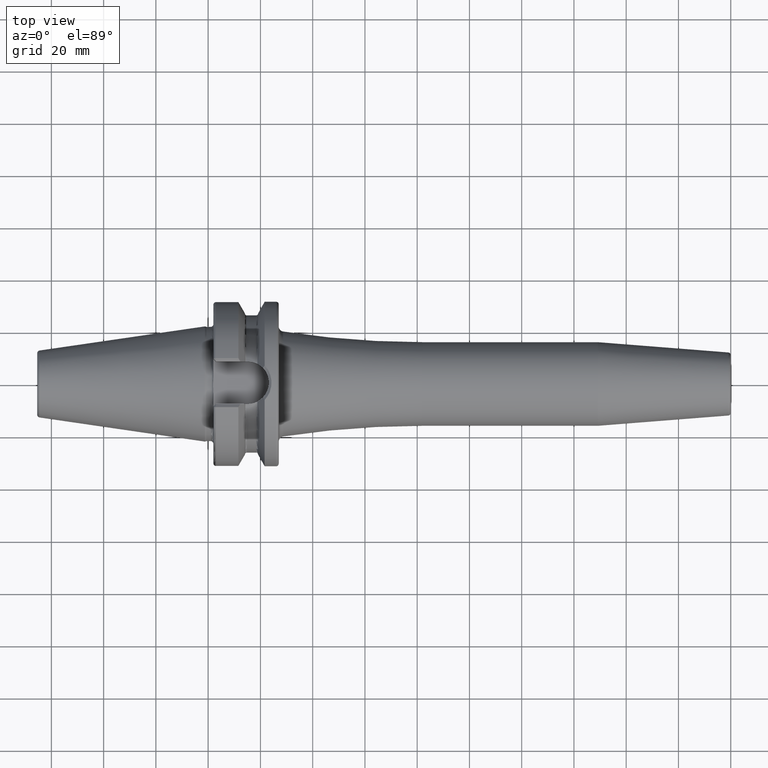
[diagram: clean part render]
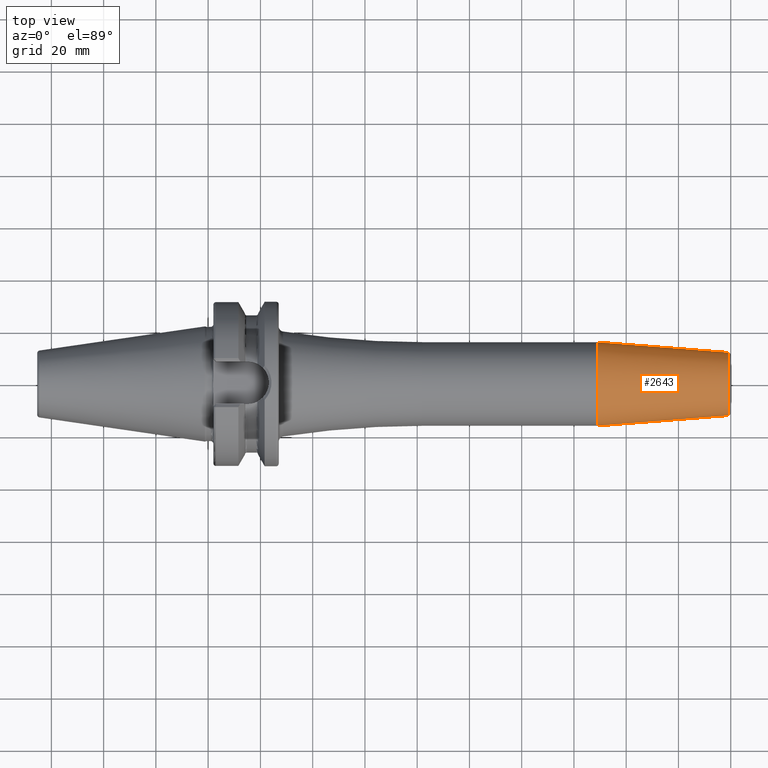
[diagram: same view with one face highlighted and labeled with its STEP entity id]
A machine part, top view. The second image highlights one B-rep face of the part: STEP entity #2643.
In plain terms, the highlighted conical surface has half-angle 4.5 deg.
Its self-contained STEP definition (entity closure, byte-faithful):
#899=CARTESIAN_POINT('',(1.491751810553E2,0.E0,0.E0));
#900=DIRECTION('',(1.E0,0.E0,0.E0));
#901=DIRECTION('',(0.E0,1.E0,0.E0));
#902=AXIS2_PLACEMENT_3D('',#899,#900,#901);
#904=CARTESIAN_POINT('',(1.990784590957E2,0.E0,0.E0));
#905=DIRECTION('',(-1.E0,0.E0,0.E0));
#906=DIRECTION('',(0.E0,-1.E0,0.E0));
#907=AXIS2_PLACEMENT_3D('',#904,#905,#906);
#924=DIRECTION('',(-9.969173337331E-1,7.845909572785E-2,8.675613332229E-14));
#925=VECTOR('',#924,5.005758888107E1);
#926=CARTESIAN_POINT('',(1.990784590957E2,1.207252684207E1,
-4.340843419880E-12));
#927=LINE('',#926,#925);
#928=DIRECTION('',(-9.969173337331E-1,-7.845909572785E-2,-8.674861091788E-14));
#929=VECTOR('',#928,5.005758888107E1);
#930=CARTESIAN_POINT('',(1.990784590957E2,-1.207252684207E1,
4.340466866452E-12));
#931=LINE('',#930,#929);
#1421=CARTESIAN_POINT('',(1.491751810553E2,1.6E1,0.E0));
#1422=CARTESIAN_POINT('',(1.491751810553E2,-1.6E1,0.E0));
#1423=VERTEX_POINT('',#1421);
#1424=VERTEX_POINT('',#1422);
#1425=CARTESIAN_POINT('',(1.990784590957E2,1.207252684207E1,0.E0));
#1426=CARTESIAN_POINT('',(1.990784590957E2,-1.207252684207E1,0.E0));
#1427=VERTEX_POINT('',#1425);
#1428=VERTEX_POINT('',#1426);
#2629=CARTESIAN_POINT('',(1.741268200755E2,0.E0,0.E0));
#2630=DIRECTION('',(-1.E0,0.E0,0.E0));
#2631=DIRECTION('',(0.E0,1.E0,0.E0));
#2632=AXIS2_PLACEMENT_3D('',#2629,#2630,#2631);
#2633=CONICAL_SURFACE('',#2632,1.403626342104E1,4.5E0);
#2635=ORIENTED_EDGE('',*,*,#2634,.F.);
#2637=ORIENTED_EDGE('',*,*,#2636,.T.);
#2638=ORIENTED_EDGE('',*,*,#2623,.F.);
#2640=ORIENTED_EDGE('',*,*,#2639,.F.);
#2641=EDGE_LOOP('',(#2635,#2637,#2638,#2640));
#2642=FACE_OUTER_BOUND('',#2641,.F.);
#2643=ADVANCED_FACE('',(#2642),#2633,.T.);
#903=CIRCLE('',#902,1.6E1);
#908=CIRCLE('',#907,1.207252684207E1);
#2623=EDGE_CURVE('',#1423,#1424,#903,.T.);
#2634=EDGE_CURVE('',#1428,#1427,#908,.T.);
#2636=EDGE_CURVE('',#1428,#1424,#931,.T.);
#2639=EDGE_CURVE('',#1427,#1423,#927,.T.);